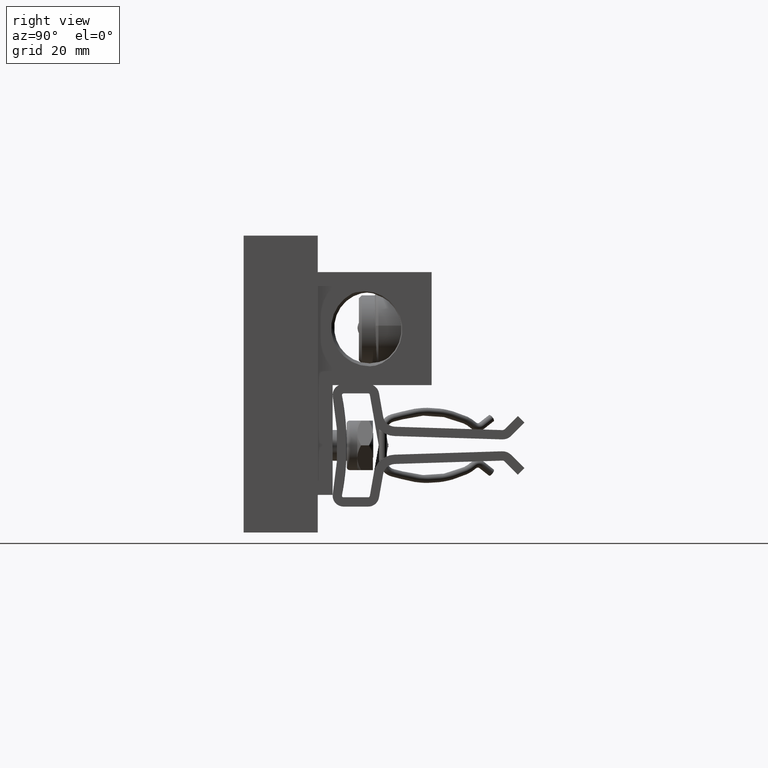
[diagram: clean part render]
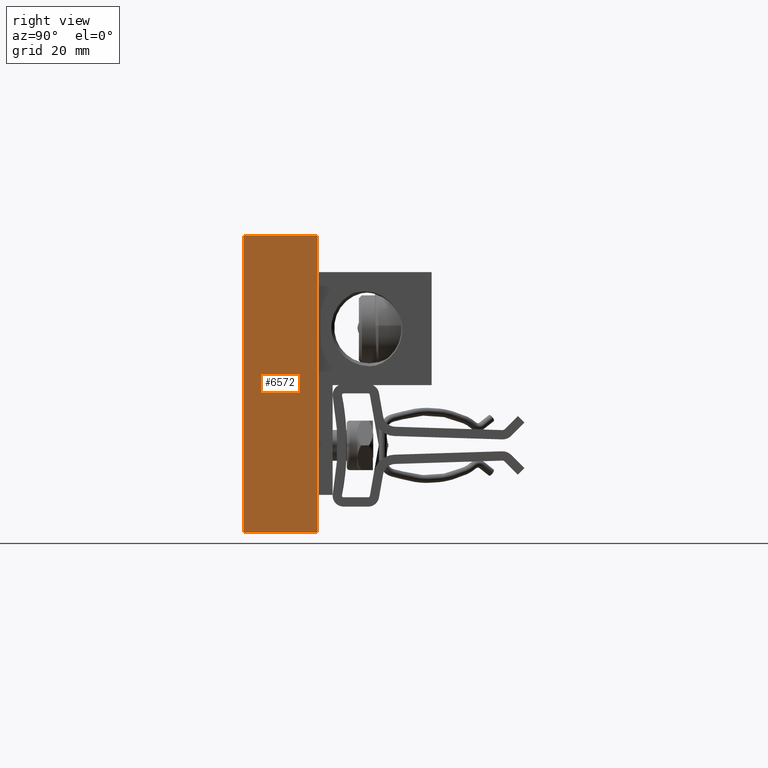
[diagram: same view with one face highlighted and labeled with its STEP entity id]
A machine part, right view. The second image highlights one B-rep face of the part: STEP entity #6572.
In plain terms, the highlighted planar face has unit normal (-1, 0, 0).
Its self-contained STEP definition (entity closure, byte-faithful):
#24 = ORIENTED_EDGE ( 'NONE', *, *, #18811, .T. ) ;
#283 = EDGE_CURVE ( 'NONE', #8965, #14884, #22430, .T. ) ;
#532 = FACE_OUTER_BOUND ( 'NONE', #10607, .T. ) ;
#2305 = VERTEX_POINT ( 'NONE', #4297 ) ;
#2368 = EDGE_CURVE ( 'NONE', #14884, #2305, #11535, .T. ) ;
#2389 = LINE ( 'NONE', #32351, #22265 ) ;
#3330 = CARTESIAN_POINT ( 'NONE',  ( 3.064999999999999500, 1.487970442073036300E-032, 1.500000000000000200 ) ) ;
#4297 = CARTESIAN_POINT ( 'NONE',  ( 3.064999999999999500, 1.487970442073036300E-032, 1.500000000000000200 ) ) ;
#6093 = ORIENTED_EDGE ( 'NONE', *, *, #20087, .T. ) ;
#6572 = ADVANCED_FACE ( 'NONE', ( #532 ), #17450, .F. ) ;
#7041 = ORIENTED_EDGE ( 'NONE', *, *, #283, .F. ) ;
#7067 = LINE ( 'NONE', #3330, #24151 ) ;
#7239 = CARTESIAN_POINT ( 'NONE',  ( 3.064999999999999500, -4.520930984415140400E-032, -1.500000000000000200 ) ) ;
#8965 = VERTEX_POINT ( 'NONE', #33315 ) ;
#10607 = EDGE_LOOP ( 'NONE', ( #24, #30477, #7041, #6093 ) ) ;
#11535 = LINE ( 'NONE', #7239, #18393 ) ;
#14756 = VECTOR ( 'NONE', #19555, 39.37007874015748100 ) ;
#14884 = VERTEX_POINT ( 'NONE', #22760 ) ;
#14931 = DIRECTION ( 'NONE',  ( -1.000000000000000000, 0.0000000000000000000, 0.0000000000000000000 ) ) ;
#15875 = VERTEX_POINT ( 'NONE', #27127 ) ;
#16782 = DIRECTION ( 'NONE',  ( 0.0000000000000000000, 2.002967142162725600E-032, 1.000000000000000000 ) ) ;
#17450 = PLANE ( 'NONE',  #23816 ) ;
#18393 = VECTOR ( 'NONE', #27989, 39.37007874015748100 ) ;
#18811 = EDGE_CURVE ( 'NONE', #15875, #2305, #7067, .T. ) ;
#19555 = DIRECTION ( 'NONE',  ( 0.0000000000000000000, -1.000000000000000000, -1.848892746611746400E-032 ) ) ;
#20087 = EDGE_CURVE ( 'NONE', #8965, #15875, #2389, .T. ) ;
#20779 = CARTESIAN_POINT ( 'NONE',  ( 3.064999999999999500, -4.520930984415140400E-032, -1.500000000000000200 ) ) ;
#22265 = VECTOR ( 'NONE', #16782, 39.37007874015748100 ) ;
#22430 = LINE ( 'NONE', #20779, #14756 ) ;
#22760 = CARTESIAN_POINT ( 'NONE',  ( 3.064999999999999500, -4.520930984415140400E-032, -1.500000000000000200 ) ) ;
#23816 = AXIS2_PLACEMENT_3D ( 'NONE', #30489, #14931, #33103 ) ;
#24146 = DIRECTION ( 'NONE',  ( 0.0000000000000000000, -1.000000000000000000, -1.848892746611746400E-032 ) ) ;
#24151 = VECTOR ( 'NONE', #24146, 39.37007874015748100 ) ;
#27127 = CARTESIAN_POINT ( 'NONE',  ( 3.064999999999999500, 0.7500000000000001100, 1.500000000000000200 ) ) ;
#27989 = DIRECTION ( 'NONE',  ( 0.0000000000000000000, 2.002967142162725600E-032, 1.000000000000000000 ) ) ;
#30477 = ORIENTED_EDGE ( 'NONE', *, *, #2368, .F. ) ;
#30489 = CARTESIAN_POINT ( 'NONE',  ( 3.064999999999999500, -4.520930984415140400E-032, -1.500000000000000200 ) ) ;
#32351 = CARTESIAN_POINT ( 'NONE',  ( 3.064999999999999500, 0.7500000000000001100, -1.500000000000000200 ) ) ;
#33103 = DIRECTION ( 'NONE',  ( 0.0000000000000000000, 2.002967142162725300E-032, 1.000000000000000000 ) ) ;
#33315 = CARTESIAN_POINT ( 'NONE',  ( 3.064999999999999500, 0.7500000000000001100, -1.500000000000000200 ) ) ;